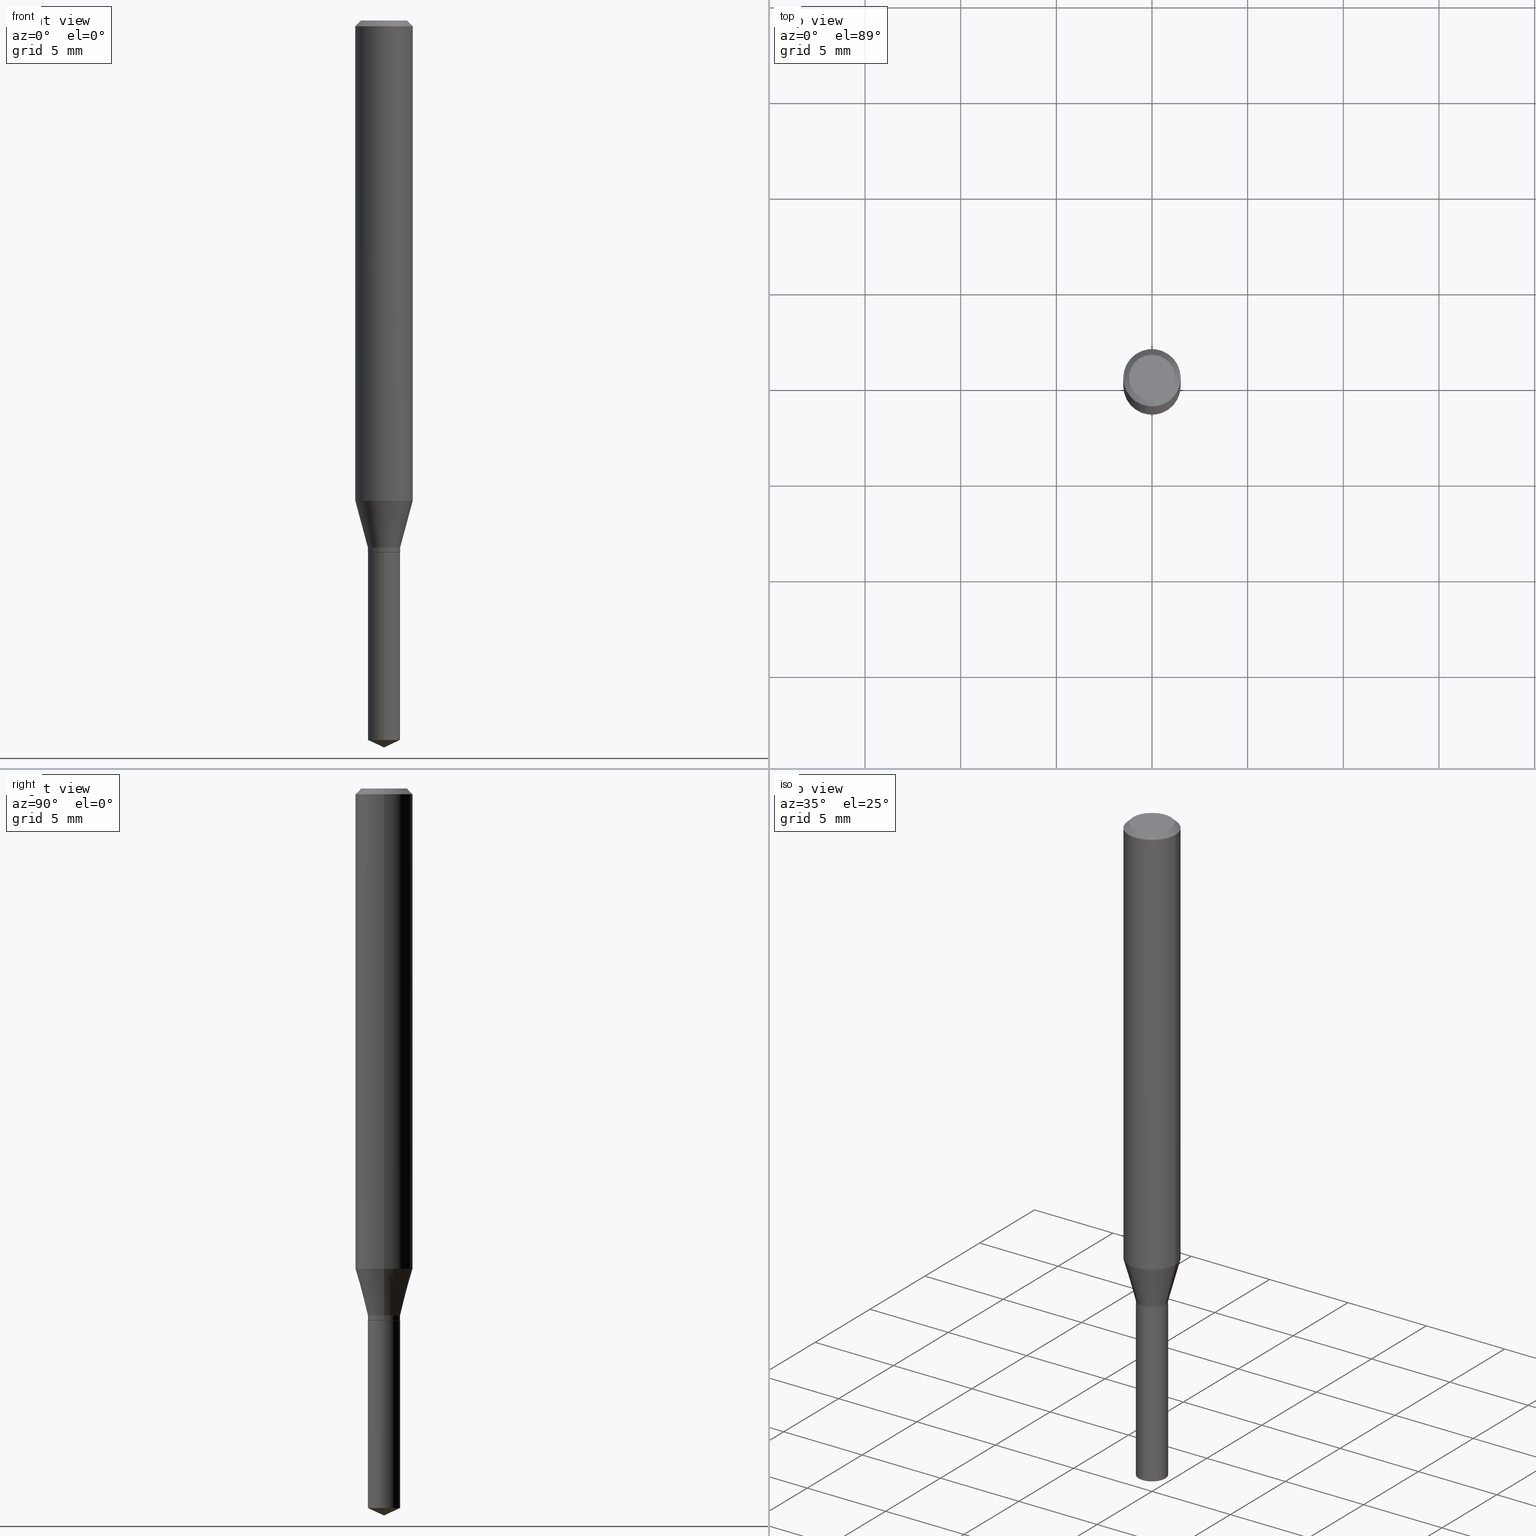
[diagram: canonical four-view strip — front | top / right | iso, engineering-drawing reading convention]
A machine part, canonical four-view strip (front | top / right | iso — engineering-drawing reading convention). The complete STEP part file that produces these views, byte-faithful:
ISO-10303-21;
HEADER;
FILE_DESCRIPTION (( 'STEP AP203' ),
    '1' );
FILE_NAME ('07907.STEP',
    '2024-04-24T05:53:26',
    ( '' ),
    ( '' ),
    'SwSTEP 2.0',
    'SolidWorks 2023',
    '' );
FILE_SCHEMA (( 'CONFIG_CONTROL_DESIGN' ));
ENDSEC;

DATA;
#1 = CARTESIAN_POINT ( 'NONE',  ( 4.132873053354867254E-48, -5.900647395337818946E-34, -1.690012582823346072E-19 ) ) ;
#2 = ORIENTED_EDGE ( 'NONE', *, *, #227, .T. ) ;
#3 = APPROVAL_DATE_TIME ( #37, #256 ) ;
#4 = ADVANCED_FACE ( 'NONE', ( #441 ), #75, .T. ) ;
#5 = FACE_OUTER_BOUND ( 'NONE', #353, .T. ) ;
#6 = ORIENTED_EDGE ( 'NONE', *, *, #56, .T. ) ;
#7 = DIRECTION ( 'NONE',  ( 2.445470214571801836E-29, -3.491479321953280158E-15, -1.000000000000000000 ) ) ;
#8 = ORIENTED_EDGE ( 'NONE', *, *, #476, .F. ) ;
#9 = COORDINATED_UNIVERSAL_TIME_OFFSET ( 5, 0, .BEHIND. ) ;
#10 = CC_DESIGN_PERSON_AND_ORGANIZATION_ASSIGNMENT ( #197, #153, ( #404 ) ) ;
#11 = EDGE_LOOP ( 'NONE', ( #396, #122 ) ) ;
#12 = ORIENTED_EDGE ( 'NONE', *, *, #127, .T. ) ;
#13 = DIRECTION ( 'NONE',  ( 1.000000000000000000, -6.982962677686266711E-15, 0.000000000000000000 ) ) ;
#14 = CIRCLE ( 'NONE', #482, 0.03275000000000000133 ) ;
#15 = APPROVAL_PERSON_ORGANIZATION ( #81, #193, #158 ) ;
#16 = CIRCLE ( 'NONE', #221, 0.03325000000000000178 ) ;
#17 = CARTESIAN_POINT ( 'NONE',  ( 0.03275000000000000133, -4.050118353058048418E-15, -1.094500000000000028 ) ) ;
#18 = EDGE_CURVE ( 'NONE', #308, #78, #86, .T. ) ;
#19 = DIRECTION ( 'NONE',  ( 1.000000000000000000, -6.982962677686267499E-15, 0.000000000000000000 ) ) ;
#20 = MANIFOLD_SOLID_BREP ( 'Body-Move/Copy2[2]', #231 ) ;
#21 = CONICAL_SURFACE ( 'NONE', #168, 0.03325000000000000178, 0.2617993877991498519 ) ;
#22 = CARTESIAN_POINT ( 'NONE',  ( -0.05904999999999999832, 3.711095515056362547E-16, -0.01181000000000007218 ) ) ;
#23 = DIRECTION ( 'NONE',  ( 1.000000000000000000, -6.982962677686266711E-15, 4.876176775795935793E-29 ) ) ;
#24 = PERSON_AND_ORGANIZATION ( #102, #377 ) ;
#25 = PLANE ( 'NONE',  #174 ) ;
#26 =( NAMED_UNIT ( * ) PLANE_ANGLE_UNIT ( ) SI_UNIT ( $, .RADIAN. ) );
#27 = CC_DESIGN_PERSON_AND_ORGANIZATION_ASSIGNMENT ( #24, #179, ( #385 ) ) ;
#28 = CYLINDRICAL_SURFACE ( 'NONE', #109, 0.03325000000000000178 ) ;
#29 = EDGE_CURVE ( 'NONE', #223, #187, #327, .T. ) ;
#30 = CIRCLE ( 'NONE', #414, 0.03325000000000000178 ) ;
#31 = APPROVAL_PERSON_ORGANIZATION ( #135, #364, #460 ) ;
#32 = EDGE_LOOP ( 'NONE', ( #198, #46, #287, #387 ) ) ;
#33 = CARTESIAN_POINT ( 'NONE',  ( 2.676565608369632355E-29, -3.821426325363822773E-15, -1.094500000000000028 ) ) ;
#34 = ORIENTED_EDGE ( 'NONE', *, *, #289, .F. ) ;
#35 = CARTESIAN_POINT ( 'NONE',  ( 2.652110920307780249E-29, -3.786511511975391124E-15, -1.084499999999999797 ) ) ;
#36 = EDGE_LOOP ( 'NONE', ( #435, #362 ) ) ;
#37 = DATE_AND_TIME ( #384, #190 ) ;
#38 = DIRECTION ( 'NONE',  ( 1.000000000000000000, -6.982962677686266711E-15, 0.000000000000000000 ) ) ;
#39 = DIRECTION ( 'NONE',  ( -2.445470214571802396E-29, 3.491479321953280158E-15, 1.000000000000000000 ) ) ;
#40 = CONICAL_SURFACE ( 'NONE', #229, 84.42940631927426409, 1.134464013796315562 ) ;
#41 = PERSON_AND_ORGANIZATION ( #102, #377 ) ;
#42 = CC_DESIGN_APPROVAL ( #193, ( #404 ) ) ;
#43 = EDGE_CURVE ( 'NONE', #106, #72, #129, .T. ) ;
#44 = APPROVAL_STATUS ( 'not_yet_approved' ) ;
#45 = DIRECTION ( 'NONE',  ( 1.000000000000000000, -6.982962677686267499E-15, 0.000000000000000000 ) ) ;
#46 = ORIENTED_EDGE ( 'NONE', *, *, #397, .T. ) ;
#47 = PERSON_AND_ORGANIZATION ( #102, #377 ) ;
#48 = FACE_OUTER_BOUND ( 'NONE', #239, .T. ) ;
#49 = ADVANCED_FACE ( 'NONE', ( #206 ), #207, .T. ) ;
#50 = ORIENTED_EDGE ( 'NONE', *, *, #386, .T. ) ;
#51 = AXIS2_PLACEMENT_3D ( 'NONE', #367, #244, #23 ) ;
#52 = CC_DESIGN_SECURITY_CLASSIFICATION ( #404, ( #251 ) ) ;
#53 = VERTEX_POINT ( 'NONE', #284 ) ;
#54 = VERTEX_POINT ( 'NONE', #58 ) ;
#55 = ORIENTED_EDGE ( 'NONE', *, *, #43, .T. ) ;
#56 = EDGE_CURVE ( 'NONE', #54, #308, #137, .T. ) ;
#57 = VECTOR ( 'NONE', #451, 39.37007874015748143 ) ;
#58 = CARTESIAN_POINT ( 'NONE',  ( -0.03275000000000000133, -3.586074352228278358E-15, -1.094500000000000028 ) ) ;
#59 = DIRECTION ( 'NONE',  ( -2.445468806185136597E-29, 3.491481338843145583E-15, 1.000000000000000000 ) ) ;
#60 = LINE ( 'NONE', #184, #361 ) ;
#61 = VECTOR ( 'NONE', #39, 39.37007874015748143 ) ;
#62 = CARTESIAN_POINT ( 'NONE',  ( 0.000000000000000000, 0.000000000000000000, 0.000000000000000000 ) ) ;
#63 = DIRECTION ( 'NONE',  ( -2.445468806185136597E-29, 3.491481338843145583E-15, 1.000000000000000000 ) ) ;
#64 = CARTESIAN_POINT ( 'NONE',  ( -0.05904999999999999832, -1.326205491649111683E-15, -0.01181000000000007218 ) ) ;
#65 = VECTOR ( 'NONE', #321, 39.37007874015748143 ) ;
#66 = CARTESIAN_POINT ( 'NONE',  ( -2.321835090330415843E-16, -0.03325000000000382511, -1.094499999999999806 ) ) ;
#67 = DIRECTION ( 'NONE',  ( -2.445470214571802116E-29, 3.491479321953280158E-15, 1.000000000000000000 ) ) ;
#68 = DIRECTION ( 'NONE',  ( -2.445468806185136597E-29, 3.491481338843145583E-15, 1.000000000000000000 ) ) ;
#69 = APPLICATION_PROTOCOL_DEFINITION ( 'international standard', 'config_control_design', 1994, #472 ) ;
#70 = CARTESIAN_POINT ( 'NONE',  ( -0.03325000000000000178, -3.566840588694662478E-15, -1.093999999999999861 ) ) ;
#71 = VECTOR ( 'NONE', #114, 39.37007874015748143 ) ;
#72 = VERTEX_POINT ( 'NONE', #246 ) ;
#73 = DIRECTION ( 'NONE',  ( -2.445468806185136597E-29, 3.491481338843145583E-15, 1.000000000000000000 ) ) ;
#74 = ORIENTED_EDGE ( 'NONE', *, *, #476, .T. ) ;
#75 = CONICAL_SURFACE ( 'NONE', #356, 0.03275000000000000133, 0.7853981633972775267 ) ;
#76 = FACE_OUTER_BOUND ( 'NONE', #343, .T. ) ;
#77 = EDGE_CURVE ( 'NONE', #78, #308, #125, .T. ) ;
#78 = VERTEX_POINT ( 'NONE', #440 ) ;
#79 = VECTOR ( 'NONE', #391, 39.37007874015748854 ) ;
#80 = LOCAL_TIME ( 1, 53, 26.00000000000000000, #9 ) ;
#81 = PERSON_AND_ORGANIZATION ( #102, #377 ) ;
#82 = ORIENTED_EDGE ( 'NONE', *, *, #131, .F. ) ;
#83 = DATE_AND_TIME ( #309, #342 ) ;
#84 = CARTESIAN_POINT ( 'NONE',  ( 2.888098660104664204E-31, -4.123439461173780263E-17, -0.01181000000000007218 ) ) ;
#85 = EDGE_CURVE ( 'NONE', #467, #117, #291, .T. ) ;
#86 = CIRCLE ( 'NONE', #134, 0.03325000000000000178 ) ;
#87 = ORIENTED_EDGE ( 'NONE', *, *, #85, .T. ) ;
#88 = EDGE_LOOP ( 'NONE', ( #132, #165, #50, #8 ) ) ;
#89 = CARTESIAN_POINT ( 'NONE',  ( -0.04724000000000000421, 3.504923541997677355E-16, -3.380025165670481712E-19 ) ) ;
#90 = ORIENTED_EDGE ( 'NONE', *, *, #171, .T. ) ;
#91 = ORIENTED_EDGE ( 'NONE', *, *, #266, .F. ) ;
#92 = CARTESIAN_POINT ( 'NONE',  ( 2.416644283416180076E-29, -3.450327559619166201E-15, -0.9882130891647225024 ) ) ;
#93 = CARTESIAN_POINT ( 'NONE',  ( 2.888098660104664204E-31, -4.123439461173780263E-17, -0.01181000000000007218 ) ) ;
#94 = DIRECTION ( 'NONE',  ( -2.445468806185136597E-29, 3.491481338843145583E-15, 1.000000000000000000 ) ) ;
#95 = CARTESIAN_POINT ( 'NONE',  ( -0.03275000000000000133, -3.588723579402390347E-15, -1.094500000000000028 ) ) ;
#96 = ORIENTED_EDGE ( 'NONE', *, *, #400, .F. ) ;
#97 = PLANE ( 'NONE',  #383 ) ;
#98 = PRODUCT_RELATED_PRODUCT_CATEGORY ( 'detail', '', ( #201 ) ) ;
#99 = DIRECTION ( 'NONE',  ( -2.445468806185136597E-29, 3.491481338843145583E-15, 1.000000000000000000 ) ) ;
#100 = COORDINATED_UNIVERSAL_TIME_OFFSET ( 5, 0, .BEHIND. ) ;
#101 = DIRECTION ( 'NONE',  ( -2.445468806185136597E-29, 3.491481338843145583E-15, 1.000000000000000000 ) ) ;
#102 = PERSON ( 'UNSPECIFIED', 'UNSPECIFIED', 'UNSPECIFIED', ('UNSPECIFIED'), ('UNSPECIFIED'), ('UNSPECIFIED') ) ;
#103 = ADVANCED_FACE ( 'NONE', ( #133 ), #170, .T. ) ;
#104 = APPLICATION_PROTOCOL_DEFINITION ( 'international standard', 'config_control_design', 1994, #235 ) ;
#105 = DIRECTION ( 'NONE',  ( -2.445468806185136597E-29, 3.491481338843145583E-15, 1.000000000000000000 ) ) ;
#106 = VERTEX_POINT ( 'NONE', #64 ) ;
#107 = LINE ( 'NONE', #224, #57 ) ;
#108 = DIRECTION ( 'NONE',  ( -2.445468806185136597E-29, 3.491481338843145583E-15, 1.000000000000000000 ) ) ;
#109 = AXIS2_PLACEMENT_3D ( 'NONE', #144, #212, #489 ) ;
#110 =( GEOMETRIC_REPRESENTATION_CONTEXT ( 3 ) GLOBAL_UNCERTAINTY_ASSIGNED_CONTEXT ( ( #288 ) ) GLOBAL_UNIT_ASSIGNED_CONTEXT ( ( #455, #26, #261 ) ) REPRESENTATION_CONTEXT ( 'NONE', 'WORKASPACE' ) );
#111 =( LENGTH_UNIT ( ) NAMED_UNIT ( * ) SI_UNIT ( $, .METRE. ) );
#112 = FACE_OUTER_BOUND ( 'NONE', #466, .T. ) ;
#113 = DIRECTION ( 'NONE',  ( -2.445468806185136597E-29, 3.491481338843145583E-15, 1.000000000000000000 ) ) ;
#114 = DIRECTION ( 'NONE',  ( -2.445468806185136877E-29, 3.491481338843145188E-15, 1.000000000000000000 ) ) ;
#115 = ORIENTED_EDGE ( 'NONE', *, *, #29, .T. ) ;
#116 = DIRECTION ( 'NONE',  ( -2.445470214571802116E-29, 3.491479321953280158E-15, 1.000000000000000000 ) ) ;
#117 = VERTEX_POINT ( 'NONE', #324 ) ;
#118 = CIRCLE ( 'NONE', #399, 0.03325000000000000178 ) ;
#119 = DESIGN_CONTEXT ( 'detailed design', #472, 'design' ) ;
#120 = ORIENTED_EDGE ( 'NONE', *, *, #127, .F. ) ;
#121 = PERSON_AND_ORGANIZATION_ROLE ( 'creator' ) ;
#122 = ORIENTED_EDGE ( 'NONE', *, *, #397, .F. ) ;
#123 = DIRECTION ( 'NONE',  ( -1.000000000000000000, 6.982962677686266711E-15, 0.000000000000000000 ) ) ;
#124 = EDGE_LOOP ( 'NONE', ( #295, #271, #413, #469 ) ) ;
#125 = CIRCLE ( 'NONE', #433, 0.03325000000000000178 ) ;
#126 = CIRCLE ( 'NONE', #301, 0.04724000000000000421 ) ;
#127 = EDGE_CURVE ( 'NONE', #317, #187, #16, .T. ) ;
#128 = EDGE_LOOP ( 'NONE', ( #282, #310, #87, #275 ) ) ;
#129 = CIRCLE ( 'NONE', #454, 0.05904999999999999832 ) ;
#130 = DIRECTION ( 'NONE',  ( 1.000000000000000000, -6.982962677686266711E-15, 0.000000000000000000 ) ) ;
#131 = EDGE_CURVE ( 'NONE', #273, #106, #177, .T. ) ;
#132 = ORIENTED_EDGE ( 'NONE', *, *, #227, .F. ) ;
#133 = FACE_OUTER_BOUND ( 'NONE', #313, .T. ) ;
#134 = AXIS2_PLACEMENT_3D ( 'NONE', #437, #99, #369 ) ;
#135 = PERSON_AND_ORGANIZATION ( #102, #377 ) ;
#136 = CC_DESIGN_PERSON_AND_ORGANIZATION_ASSIGNMENT ( #47, #121, ( #251 ) ) ;
#137 = LINE ( 'NONE', #95, #443 ) ;
#138 = CALENDAR_DATE ( 2024, 24, 4 ) ;
#139 = CIRCLE ( 'NONE', #403, 0.05905000000000011628 ) ;
#140 = CARTESIAN_POINT ( 'NONE',  ( 2.676565608369632355E-29, -3.821426325363822773E-15, -1.094500000000000028 ) ) ;
#141 = DIRECTION ( 'NONE',  ( -2.445470214571802116E-29, 3.491479321953280158E-15, 1.000000000000000000 ) ) ;
#142 = DIRECTION ( 'NONE',  ( 2.438088387897960049E-29, -3.491481338843145188E-15, -1.000000000000000000 ) ) ;
#143 = FACE_OUTER_BOUND ( 'NONE', #465, .T. ) ;
#144 = CARTESIAN_POINT ( 'NONE',  ( 2.676565608369631794E-29, -3.821426325363822773E-15, -1.094499999999999806 ) ) ;
#145 = EDGE_LOOP ( 'NONE', ( #390, #12, #90, #421 ) ) ;
#146 = PERSON_AND_ORGANIZATION_ROLE ( 'design_owner' ) ;
#147 = EDGE_CURVE ( 'NONE', #354, #78, #323, .T. ) ;
#148 = FACE_OUTER_BOUND ( 'NONE', #88, .T. ) ;
#149 = AXIS2_PLACEMENT_3D ( 'NONE', #359, #7, #281 ) ;
#150 = LOCAL_TIME ( 1, 53, 26.00000000000000000, #329 ) ;
#151 = ORIENTED_EDGE ( 'NONE', *, *, #464, .F. ) ;
#152 = DIRECTION ( 'NONE',  ( 1.000000000000000000, -6.982962677686267499E-15, 0.000000000000000000 ) ) ;
#153 = PERSON_AND_ORGANIZATION_ROLE ( 'classification_officer' ) ;
#154 = EDGE_CURVE ( 'NONE', #273, #117, #307, .T. ) ;
#155 = CARTESIAN_POINT ( 'NONE',  ( -9.261968845786000133E-28, 1.322362114038720264E-13, 37.87397874015748300 ) ) ;
#156 = EDGE_CURVE ( 'NONE', #223, #317, #420, .T. ) ;
#157 = ORIENTED_EDGE ( 'NONE', *, *, #154, .T. ) ;
#158 = APPROVAL_ROLE ( '' ) ;
#159 = LINE ( 'NONE', #389, #71 ) ;
#160 = ORIENTED_EDGE ( 'NONE', *, *, #147, .F. ) ;
#161 = CONICAL_SURFACE ( 'NONE', #279, 0.05904999999999999832, 0.7853981633974452814 ) ;
#162 = COORDINATED_UNIVERSAL_TIME_OFFSET ( 5, 0, .BEHIND. ) ;
#163 = LINE ( 'NONE', #237, #79 ) ;
#164 = ORIENTED_EDGE ( 'NONE', *, *, #18, .T. ) ;
#165 = ORIENTED_EDGE ( 'NONE', *, *, #464, .T. ) ;
#166 = ADVANCED_FACE ( 'NONE', ( #143 ), #462, .T. ) ;
#167 = ORIENTED_EDGE ( 'NONE', *, *, #409, .F. ) ;
#168 = AXIS2_PLACEMENT_3D ( 'NONE', #35, #105, #330 ) ;
#169 = CIRCLE ( 'NONE', #270, 0.03325000000000000178 ) ;
#170 = CYLINDRICAL_SURFACE ( 'NONE', #286, 0.03325000000000000178 ) ;
#171 = EDGE_CURVE ( 'NONE', #187, #475, #226, .T. ) ;
#172 = DIRECTION ( 'NONE',  ( 0.2588190451025211281, 1.565188264969622954E-15, 0.9659258262890679791 ) ) ;
#173 = VECTOR ( 'NONE', #172, 39.37007874015748854 ) ;
#174 = AXIS2_PLACEMENT_3D ( 'NONE', #1, #142, #450 ) ;
#175 = CARTESIAN_POINT ( 'NONE',  ( 2.676565608369632355E-29, -3.821426325363822773E-15, -1.094500000000000028 ) ) ;
#176 = ADVANCED_FACE ( 'NONE', ( #189 ), #306, .F. ) ;
#177 = LINE ( 'NONE', #445, #408 ) ;
#178 = CARTESIAN_POINT ( 'NONE',  ( 2.676565608369631794E-29, -3.821426325363822773E-15, -1.094499999999999806 ) ) ;
#179 = PERSON_AND_ORGANIZATION_ROLE ( 'creator' ) ;
#180 = VECTOR ( 'NONE', #334, 39.37007874015748143 ) ;
#181 = DIRECTION ( 'NONE',  ( -6.982962677686265922E-15, -1.000000000000000000, 4.108042095735734288E-15 ) ) ;
#182 = CARTESIAN_POINT ( 'NONE',  ( 3.658668015054778287E-29, -5.223602213574301462E-15, -1.496099999999999985 ) ) ;
#183 = VERTEX_POINT ( 'NONE', #427 ) ;
#184 = CARTESIAN_POINT ( 'NONE',  ( 0.05905000000000006077, -4.123439461173744764E-16, 2.879382386107503023E-30 ) ) ;
#185 = DIRECTION ( 'NONE',  ( -2.445468806185136597E-29, 3.491481338843145583E-15, 1.000000000000000000 ) ) ;
#186 = CYLINDRICAL_SURFACE ( 'NONE', #208, 0.03325000000000000178 ) ;
#187 = VERTEX_POINT ( 'NONE', #234 ) ;
#188 = CARTESIAN_POINT ( 'NONE',  ( 3.658667988020872822E-29, -5.223602213574301462E-15, -1.496099999999999985 ) ) ;
#189 = FACE_OUTER_BOUND ( 'NONE', #36, .T. ) ;
#190 = LOCAL_TIME ( 1, 53, 26.00000000000000000, #192 ) ;
#191 = ORIENTED_EDGE ( 'NONE', *, *, #43, .F. ) ;
#192 = COORDINATED_UNIVERSAL_TIME_OFFSET ( 5, 0, .BEHIND. ) ;
#193 = APPROVAL ( #44, 'UNSPECIFIED' ) ;
#194 = CARTESIAN_POINT ( 'NONE',  ( 3.620750092037578923E-29, -5.169469978151881884E-15, -1.480595270366346305 ) ) ;
#195 = ADVANCED_FACE ( 'NONE', ( #48 ), #340, .T. ) ;
#196 = ORIENTED_EDGE ( 'NONE', *, *, #29, .F. ) ;
#197 = PERSON_AND_ORGANIZATION ( #102, #377 ) ;
#198 = ORIENTED_EDGE ( 'NONE', *, *, #56, .F. ) ;
#199 = ADVANCED_FACE ( 'NONE', ( #5 ), #40, .T. ) ;
#200 = VECTOR ( 'NONE', #363, 39.37007874015748143 ) ;
#201 = PRODUCT ( '07907', '07907', '', ( #480 ) ) ;
#202 = ORIENTED_EDGE ( 'NONE', *, *, #360, .T. ) ;
#203 = CIRCLE ( 'NONE', #447, 0.05904999999999999832 ) ;
#204 = EDGE_CURVE ( 'NONE', #117, #273, #139, .T. ) ;
#205 = CARTESIAN_POINT ( 'NONE',  ( 2.675342873966538993E-29, -3.819680584694400481E-15, -1.093999999999999861 ) ) ;
#206 = FACE_OUTER_BOUND ( 'NONE', #458, .T. ) ;
#207 = CYLINDRICAL_SURFACE ( 'NONE', #51, 0.05905000000000006077 ) ;
#208 = AXIS2_PLACEMENT_3D ( 'NONE', #178, #67, #181 ) ;
#209 = DIRECTION ( 'NONE',  ( -6.982962677686265922E-15, -1.000000000000000000, 0.000000000000000000 ) ) ;
#210 = ADVANCED_FACE ( 'NONE', ( #293 ), #245, .T. ) ;
#211 = DIRECTION ( 'NONE',  ( -6.982962677686265922E-15, -1.000000000000000000, 4.108042095735734288E-15 ) ) ;
#212 = DIRECTION ( 'NONE',  ( -2.445470214571802116E-29, 3.491479321953280158E-15, 1.000000000000000000 ) ) ;
#213 = DIRECTION ( 'NONE',  ( -2.445468806185136877E-29, 3.491481338843145188E-15, 1.000000000000000000 ) ) ;
#214 = DIRECTION ( 'NONE',  ( -2.445468806185136597E-29, 3.491481338843145583E-15, 1.000000000000000000 ) ) ;
#215 = ORIENTED_EDGE ( 'NONE', *, *, #156, .T. ) ;
#216 = DIRECTION ( 'NONE',  ( -2.445468806185136597E-29, 3.491481338843145583E-15, 1.000000000000000000 ) ) ;
#217 = DIRECTION ( 'NONE',  ( 1.000000000000000000, -6.982962677686265133E-15, 0.000000000000000000 ) ) ;
#218 = ADVANCED_FACE ( 'NONE', ( #380 ), #373, .T. ) ;
#219 = ORIENTED_EDGE ( 'NONE', *, *, #386, .F. ) ;
#220 = DIRECTION ( 'NONE',  ( 0.000000000000000000, 0.000000000000000000, 1.000000000000000000 ) ) ;
#221 = AXIS2_PLACEMENT_3D ( 'NONE', #402, #401, #209 ) ;
#222 = CARTESIAN_POINT ( 'NONE',  ( -0.03325000000000000178, 2.362554596402333244E-16, -1.635545917509756392E-30 ) ) ;
#223 = VERTEX_POINT ( 'NONE', #188 ) ;
#224 = CARTESIAN_POINT ( 'NONE',  ( 0.05904999999999999832, -4.463468013801466955E-16, -0.01181000000000007218 ) ) ;
#225 = CARTESIAN_POINT ( 'NONE',  ( 2.652110920307780249E-29, -3.786511511975391124E-15, -1.084499999999999797 ) ) ;
#226 = LINE ( 'NONE', #381, #61 ) ;
#227 = EDGE_CURVE ( 'NONE', #425, #429, #126, .T. ) ;
#228 = ORIENTED_EDGE ( 'NONE', *, *, #289, .T. ) ;
#229 = AXIS2_PLACEMENT_3D ( 'NONE', #155, #116, #319 ) ;
#230 = ORIENTED_EDGE ( 'NONE', *, *, #485, .F. ) ;
#231 = CLOSED_SHELL ( 'NONE', ( #294, #248, #49, #320, #166, #103, #210, #218, #372, #258, #326, #4 ) ) ;
#232 = APPROVAL_DATE_TIME ( #83, #193 ) ;
#233 = DIRECTION ( 'NONE',  ( 2.445468806185136597E-29, -3.491481338843145583E-15, -1.000000000000000000 ) ) ;
#234 = CARTESIAN_POINT ( 'NONE',  ( -2.321835090330320687E-16, -0.03325000000000517125, -1.480595270366346305 ) ) ;
#235 = APPLICATION_CONTEXT ( 'configuration controlled 3d designs of mechanical parts and assemblies' ) ;
#236 = ORIENTED_EDGE ( 'NONE', *, *, #131, .T. ) ;
#237 = CARTESIAN_POINT ( 'NONE',  ( -0.03325000000000000178, -3.550256052335157800E-15, -1.084499999999999797 ) ) ;
#238 = ADVANCED_FACE ( 'NONE', ( #341 ), #28, .T. ) ;
#239 = EDGE_LOOP ( 'NONE', ( #349, #115, #120 ) ) ;
#240 = AXIS2_PLACEMENT_3D ( 'NONE', #416, #411, #370 ) ;
#241 = LOCAL_TIME ( 1, 53, 26.00000000000000000, #100 ) ;
#242 = ORIENTED_EDGE ( 'NONE', *, *, #77, .F. ) ;
#243 = ORIENTED_EDGE ( 'NONE', *, *, #204, .F. ) ;
#244 = DIRECTION ( 'NONE',  ( -2.445468806185136597E-29, 3.491481338843145583E-15, 1.000000000000000000 ) ) ;
#245 = CONICAL_SURFACE ( 'NONE', #262, 0.03325000000000000178, 0.2617993877991498519 ) ;
#246 = CARTESIAN_POINT ( 'NONE',  ( 0.05904999999999999832, -4.535783407291118600E-16, -0.01181000000000007218 ) ) ;
#247 = CARTESIAN_POINT ( 'NONE',  ( 3.658664905062460986E-29, -5.223606628546217219E-15, -1.496099999999999985 ) ) ;
#248 = ADVANCED_FACE ( 'NONE', ( #148 ), #292, .T. ) ;
#249 = APPROVAL_STATUS ( 'not_yet_approved' ) ;
#250 = AXIS2_PLACEMENT_3D ( 'NONE', #298, #113, #267 ) ;
#251 = PRODUCT_DEFINITION_FORMATION_WITH_SPECIFIED_SOURCE ( 'ANY', '', #201, .NOT_KNOWN. ) ;
#252 = DIRECTION ( 'NONE',  ( -2.445468806185136597E-29, 3.491481338843145583E-15, 1.000000000000000000 ) ) ;
#253 = CARTESIAN_POINT ( 'NONE',  ( 0.03325000000000000178, -4.018695021008458987E-15, -1.084499999999999797 ) ) ;
#254 = DATE_AND_TIME ( #138, #150 ) ;
#255 = FACE_OUTER_BOUND ( 'NONE', #124, .T. ) ;
#256 = APPROVAL ( #423, 'UNSPECIFIED' ) ;
#257 = CARTESIAN_POINT ( 'NONE',  ( 8.265746106709734507E-48, -1.180129479067563789E-33, -3.380025165646692144E-19 ) ) ;
#258 = ADVANCED_FACE ( 'NONE', ( #76 ), #25, .F. ) ;
#259 = DIRECTION ( 'NONE',  ( 1.000000000000000000, -6.982962677686265922E-15, 4.876176775795935793E-29 ) ) ;
#260 = ORIENTED_EDGE ( 'NONE', *, *, #85, .F. ) ;
#261 =( NAMED_UNIT ( * ) SI_UNIT ( $, .STERADIAN. ) SOLID_ANGLE_UNIT ( ) );
#262 = AXIS2_PLACEMENT_3D ( 'NONE', #225, #108, #484 ) ;
#263 = CARTESIAN_POINT ( 'NONE',  ( 2.652110920307780249E-29, -3.786511511975391124E-15, -1.084499999999999797 ) ) ;
#264 = CARTESIAN_POINT ( 'NONE',  ( 2.676565608369631794E-29, -3.821426325363822773E-15, -1.094499999999999806 ) ) ;
#265 = CARTESIAN_POINT ( 'NONE',  ( 8.265746106709734507E-48, -1.180129479067563789E-33, -3.380025165646692144E-19 ) ) ;
#266 = EDGE_CURVE ( 'NONE', #183, #467, #169, .T. ) ;
#267 = DIRECTION ( 'NONE',  ( 1.000000000000000000, -6.982962677686267499E-15, 4.876176775795936353E-29 ) ) ;
#268 = PRODUCT_DEFINITION_SHAPE ( 'NONE', 'NONE',  #385 ) ;
#269 = CALENDAR_DATE ( 2024, 24, 4 ) ;
#270 = AXIS2_PLACEMENT_3D ( 'NONE', #263, #73, #152 ) ;
#271 = ORIENTED_EDGE ( 'NONE', *, *, #314, .T. ) ;
#272 = DIRECTION ( 'NONE',  ( -6.982962677686265922E-15, -1.000000000000000000, 0.000000000000000000 ) ) ;
#273 = VERTEX_POINT ( 'NONE', #461 ) ;
#274 = CC_DESIGN_DATE_AND_TIME_ASSIGNMENT ( #347, #276, ( #404 ) ) ;
#275 = ORIENTED_EDGE ( 'NONE', *, *, #154, .F. ) ;
#276 = DATE_TIME_ROLE ( 'classification_date' ) ;
#277 = DIRECTION ( 'NONE',  ( -2.445468806185136597E-29, 3.491481338843145583E-15, 1.000000000000000000 ) ) ;
#278 = ORIENTED_EDGE ( 'NONE', *, *, #366, .T. ) ;
#279 = AXIS2_PLACEMENT_3D ( 'NONE', #468, #233, #123 ) ;
#280 = CC_DESIGN_APPROVAL ( #364, ( #385 ) ) ;
#281 = DIRECTION ( 'NONE',  ( 6.982962677686265922E-15, 1.000000000000000000, -3.491479321953280158E-15 ) ) ;
#282 = ORIENTED_EDGE ( 'NONE', *, *, #434, .F. ) ;
#283 = ORIENTED_EDGE ( 'NONE', *, *, #434, .T. ) ;
#284 = CARTESIAN_POINT ( 'NONE',  ( 2.362554596402695134E-16, 0.03324999999999617845, -1.094500000000000028 ) ) ;
#285 = AXIS2_PLACEMENT_3D ( 'NONE', #376, #220, #296 ) ;
#286 = AXIS2_PLACEMENT_3D ( 'NONE', #62, #407, #442 ) ;
#287 = ORIENTED_EDGE ( 'NONE', *, *, #147, .T. ) ;
#288 = UNCERTAINTY_MEASURE_WITH_UNIT (LENGTH_MEASURE( 1.000000000000000082E-05 ), #455, 'distance_accuracy_value', 'NONE');
#289 = EDGE_CURVE ( 'NONE', #308, #183, #412, .T. ) ;
#290 = CARTESIAN_POINT ( 'NONE',  ( 0.03325000000000000178, -4.018695021008458987E-15, -1.084499999999999797 ) ) ;
#291 = LINE ( 'NONE', #253, #173 ) ;
#292 = CONICAL_SURFACE ( 'NONE', #240, 0.05904999999999999832, 0.7853981633974452814 ) ;
#293 = FACE_OUTER_BOUND ( 'NONE', #128, .T. ) ;
#294 = ADVANCED_FACE ( 'NONE', ( #444 ), #424, .T. ) ;
#295 = ORIENTED_EDGE ( 'NONE', *, *, #409, .T. ) ;
#296 = DIRECTION ( 'NONE',  ( 1.000000000000000000, 0.000000000000000000, 0.000000000000000000 ) ) ;
#297 = DIRECTION ( 'NONE',  ( -2.445468806185136877E-29, 3.491481338843145188E-15, 1.000000000000000000 ) ) ;
#298 = CARTESIAN_POINT ( 'NONE',  ( 0.000000000000000000, 0.000000000000000000, 0.000000000000000000 ) ) ;
#299 = LENGTH_MEASURE_WITH_UNIT ( LENGTH_MEASURE( 0.02539999999999999897 ), #111 );
#300 = CARTESIAN_POINT ( 'NONE',  ( 2.652110920307780249E-29, -3.786511511975391124E-15, -1.084499999999999797 ) ) ;
#301 = AXIS2_PLACEMENT_3D ( 'NONE', #265, #252, #419 ) ;
#302 = FACE_OUTER_BOUND ( 'NONE', #11, .T. ) ;
#303 = ADVANCED_BREP_SHAPE_REPRESENTATION ( '07907', ( #357, #20, #285 ), #110 ) ;
#304 = CARTESIAN_POINT ( 'NONE',  ( 2.676565608369632355E-29, -3.821426325363822773E-15, -1.094500000000000028 ) ) ;
#305 = ADVANCED_FACE ( 'NONE', ( #255 ), #186, .T. ) ;
#306 = PLANE ( 'NONE',  #149 ) ;
#307 = CIRCLE ( 'NONE', #345, 0.05905000000000011628 ) ;
#308 = VERTEX_POINT ( 'NONE', #70 ) ;
#309 = CALENDAR_DATE ( 2024, 24, 4 ) ;
#310 = ORIENTED_EDGE ( 'NONE', *, *, #266, .T. ) ;
#311 = CIRCLE ( 'NONE', #392, 0.04724000000000000421 ) ;
#312 = CC_DESIGN_APPROVAL ( #256, ( #251 ) ) ;
#313 = EDGE_LOOP ( 'NONE', ( #34, #164, #395, #91 ) ) ;
#314 = EDGE_CURVE ( 'NONE', #317, #53, #332, .T. ) ;
#315 = EDGE_LOOP ( 'NONE', ( #151, #230, #74, #55 ) ) ;
#316 = FACE_OUTER_BOUND ( 'NONE', #315, .T. ) ;
#317 = VERTEX_POINT ( 'NONE', #379 ) ;
#318 = VECTOR ( 'NONE', #457, 39.37007874015748143 ) ;
#319 = DIRECTION ( 'NONE',  ( -6.982962677686266711E-15, -1.000000000000000000, 3.520397390770457025E-15 ) ) ;
#320 = ADVANCED_FACE ( 'NONE', ( #112 ), #21, .T. ) ;
#321 = DIRECTION ( 'NONE',  ( 0.7071067811864267805, -2.468850131080992517E-15, 0.7071067811866682540 ) ) ;
#322 = VECTOR ( 'NONE', #422, 39.37007874015748854 ) ;
#323 = LINE ( 'NONE', #17, #65 ) ;
#324 = CARTESIAN_POINT ( 'NONE',  ( 0.05905000000000011628, -3.862671505736541121E-15, -0.9882130891647225024 ) ) ;
#325 = AXIS2_PLACEMENT_3D ( 'NONE', #488, #63, #337 ) ;
#326 = ADVANCED_FACE ( 'NONE', ( #302 ), #97, .F. ) ;
#327 = LINE ( 'NONE', #247, #200 ) ;
#328 = DATE_AND_TIME ( #418, #241 ) ;
#329 = COORDINATED_UNIVERSAL_TIME_OFFSET ( 5, 0, .BEHIND. ) ;
#330 = DIRECTION ( 'NONE',  ( 1.000000000000000000, -6.982962677686267499E-15, 0.000000000000000000 ) ) ;
#331 = DIRECTION ( 'NONE',  ( -2.445468806185136877E-29, 3.491481338843145188E-15, 1.000000000000000000 ) ) ;
#332 = LINE ( 'NONE', #453, #318 ) ;
#333 = ORIENTED_EDGE ( 'NONE', *, *, #366, .F. ) ;
#334 = DIRECTION ( 'NONE',  ( -0.7071067811865453523, 2.468850131082234184E-15, -0.7071067811865496822 ) ) ;
#335 = DIRECTION ( 'NONE',  ( 1.000000000000000000, -6.982962677686265133E-15, 0.000000000000000000 ) ) ;
#336 = DIRECTION ( 'NONE',  ( -6.982962677686265922E-15, -1.000000000000000000, 4.108042095735734288E-15 ) ) ;
#337 = DIRECTION ( 'NONE',  ( 1.000000000000000000, -6.982962677686266711E-15, 4.876176775795935793E-29 ) ) ;
#338 = ORIENTED_EDGE ( 'NONE', *, *, #446, .F. ) ;
#339 = SECURITY_CLASSIFICATION_LEVEL ( 'unclassified' ) ;
#340 = CONICAL_SURFACE ( 'NONE', #459, 84.42940631927426409, 1.134464013796315562 ) ;
#341 = FACE_OUTER_BOUND ( 'NONE', #145, .T. ) ;
#342 = LOCAL_TIME ( 1, 53, 26.00000000000000000, #162 ) ;
#343 = EDGE_LOOP ( 'NONE', ( #486, #2 ) ) ;
#344 = DIRECTION ( 'NONE',  ( -2.445470214571802116E-29, 3.491479321953280158E-15, 1.000000000000000000 ) ) ;
#345 = AXIS2_PLACEMENT_3D ( 'NONE', #473, #68, #374 ) ;
#346 = DIRECTION ( 'NONE',  ( -6.982962677686266711E-15, -1.000000000000000000, 3.520397390770457025E-15 ) ) ;
#347 = DATE_AND_TIME ( #269, #80 ) ;
#348 = DIRECTION ( 'NONE',  ( -2.445468806185136597E-29, 3.491481338843145583E-15, 1.000000000000000000 ) ) ;
#349 = ORIENTED_EDGE ( 'NONE', *, *, #156, .F. ) ;
#350 = CARTESIAN_POINT ( 'NONE',  ( 0.04724000000000000421, -3.852183633974369345E-16, -3.380025165621689721E-19 ) ) ;
#351 = CIRCLE ( 'NONE', #439, 0.03325000000000000178 ) ;
#352 = DIRECTION ( 'NONE',  ( -2.445470214571802116E-29, 3.491479321953280158E-15, 1.000000000000000000 ) ) ;
#353 = EDGE_LOOP ( 'NONE', ( #196, #215, #167 ) ) ;
#354 = VERTEX_POINT ( 'NONE', #378 ) ;
#355 = CC_DESIGN_DATE_AND_TIME_ASSIGNMENT ( #254, #410, ( #385 ) ) ;
#356 = AXIS2_PLACEMENT_3D ( 'NONE', #175, #59, #365 ) ;
#357 = MANIFOLD_SOLID_BREP ( 'Body-Move/Copy2[1]', #452 ) ;
#358 = DIRECTION ( 'NONE',  ( -2.445468806185136597E-29, 3.491481338843145583E-15, 1.000000000000000000 ) ) ;
#359 = CARTESIAN_POINT ( 'NONE',  ( 2.676565608369631794E-29, -3.821426325363822773E-15, -1.094499999999999806 ) ) ;
#360 = EDGE_CURVE ( 'NONE', #354, #54, #432, .T. ) ;
#361 = VECTOR ( 'NONE', #331, 39.37007874015748143 ) ;
#362 = ORIENTED_EDGE ( 'NONE', *, *, #456, .T. ) ;
#363 = DIRECTION ( 'NONE',  ( -6.328713451373374112E-15, -0.9063077870366490485, 0.4226182617407013287 ) ) ;
#364 = APPROVAL ( #249, 'UNSPECIFIED' ) ;
#365 = DIRECTION ( 'NONE',  ( 1.000000000000000000, -6.982962677686265133E-15, 0.000000000000000000 ) ) ;
#366 = EDGE_CURVE ( 'NONE', #467, #183, #490, .T. ) ;
#367 = CARTESIAN_POINT ( 'NONE',  ( 0.000000000000000000, 0.000000000000000000, 0.000000000000000000 ) ) ;
#368 = AXIS2_PLACEMENT_3D ( 'NONE', #33, #185, #335 ) ;
#369 = DIRECTION ( 'NONE',  ( 1.000000000000000000, -6.982962677686267499E-15, 0.000000000000000000 ) ) ;
#370 = DIRECTION ( 'NONE',  ( -1.000000000000000000, 6.982962677686266711E-15, 0.000000000000000000 ) ) ;
#371 = DIRECTION ( 'NONE',  ( -2.445470214571802116E-29, 3.491479321953280158E-15, 1.000000000000000000 ) ) ;
#372 = ADVANCED_FACE ( 'NONE', ( #316 ), #161, .T. ) ;
#373 = CYLINDRICAL_SURFACE ( 'NONE', #325, 0.05905000000000006077 ) ;
#374 = DIRECTION ( 'NONE',  ( 1.000000000000000000, -6.982962677686266711E-15, 0.000000000000000000 ) ) ;
#375 = AXIS2_PLACEMENT_3D ( 'NONE', #300, #358, #45 ) ;
#376 = CARTESIAN_POINT ( 'NONE',  ( 0.000000000000000000, 0.000000000000000000, 0.000000000000000000 ) ) ;
#377 = ORGANIZATION ( 'UNSPECIFIED', 'UNSPECIFIED', '' ) ;
#378 = CARTESIAN_POINT ( 'NONE',  ( 0.03275000000000000133, -4.050118353058048418E-15, -1.094500000000000028 ) ) ;
#379 = CARTESIAN_POINT ( 'NONE',  ( 2.362554596402695134E-16, 0.03324999999999482536, -1.480595270366346305 ) ) ;
#380 = FACE_OUTER_BOUND ( 'NONE', #428, .T. ) ;
#381 = CARTESIAN_POINT ( 'NONE',  ( -2.321835090330415843E-16, -0.03325000000000382511, -1.094499999999999806 ) ) ;
#382 = APPROVAL_ROLE ( '' ) ;
#383 = AXIS2_PLACEMENT_3D ( 'NONE', #406, #481, #259 ) ;
#384 = CALENDAR_DATE ( 2024, 24, 4 ) ;
#385 = PRODUCT_DEFINITION ( 'UNKNOWN', '', #251, #119 ) ;
#386 = EDGE_CURVE ( 'NONE', #72, #106, #203, .T. ) ;
#387 = ORIENTED_EDGE ( 'NONE', *, *, #18, .F. ) ;
#388 = PERSON_AND_ORGANIZATION ( #102, #377 ) ;
#389 = CARTESIAN_POINT ( 'NONE',  ( 0.03325000000000000178, -2.321835090330684056E-16, 1.621328777952148847E-30 ) ) ;
#390 = ORIENTED_EDGE ( 'NONE', *, *, #314, .F. ) ;
#391 = DIRECTION ( 'NONE',  ( -0.2588190451025211281, 5.211531920934547886E-15, 0.9659258262890679791 ) ) ;
#392 = AXIS2_PLACEMENT_3D ( 'NONE', #257, #216, #487 ) ;
#393 = CC_DESIGN_PERSON_AND_ORGANIZATION_ASSIGNMENT ( #388, #426, ( #251 ) ) ;
#394 = APPROVAL_PERSON_ORGANIZATION ( #41, #256, #382 ) ;
#395 = ORIENTED_EDGE ( 'NONE', *, *, #400, .T. ) ;
#396 = ORIENTED_EDGE ( 'NONE', *, *, #360, .F. ) ;
#397 = EDGE_CURVE ( 'NONE', #54, #354, #14, .T. ) ;
#398 = ORIENTED_EDGE ( 'NONE', *, *, #77, .T. ) ;
#399 = AXIS2_PLACEMENT_3D ( 'NONE', #264, #371, #211 ) ;
#400 = EDGE_CURVE ( 'NONE', #78, #467, #159, .T. ) ;
#401 = DIRECTION ( 'NONE',  ( -2.445470214571802116E-29, 3.491479321953280158E-15, 1.000000000000000000 ) ) ;
#402 = CARTESIAN_POINT ( 'NONE',  ( 3.620750092037578923E-29, -5.169469978151881884E-15, -1.480595270366346305 ) ) ;
#403 = AXIS2_PLACEMENT_3D ( 'NONE', #92, #214, #38 ) ;
#404 = SECURITY_CLASSIFICATION ( '', '', #339 ) ;
#405 = LINE ( 'NONE', #22, #180 ) ;
#406 = CARTESIAN_POINT ( 'NONE',  ( -5.110850297619460247E-30, -8.386323468975328386E-15, -1.094500000000000028 ) ) ;
#407 = DIRECTION ( 'NONE',  ( -2.445468806185136597E-29, 3.491481338843145583E-15, 1.000000000000000000 ) ) ;
#408 = VECTOR ( 'NONE', #213, 39.37007874015748143 ) ;
#409 = EDGE_CURVE ( 'NONE', #187, #317, #30, .T. ) ;
#410 = DATE_TIME_ROLE ( 'creation_date' ) ;
#411 = DIRECTION ( 'NONE',  ( 2.445468806185136597E-29, -3.491481338843145583E-15, -1.000000000000000000 ) ) ;
#412 = LINE ( 'NONE', #222, #448 ) ;
#413 = ORIENTED_EDGE ( 'NONE', *, *, #471, .F. ) ;
#414 = AXIS2_PLACEMENT_3D ( 'NONE', #194, #344, #272 ) ;
#415 = CC_DESIGN_PERSON_AND_ORGANIZATION_ASSIGNMENT ( #449, #146, ( #201 ) ) ;
#416 = CARTESIAN_POINT ( 'NONE',  ( 2.888098660104664204E-31, -4.123439461173780263E-17, -0.01181000000000007218 ) ) ;
#417 = ORIENTED_EDGE ( 'NONE', *, *, #204, .T. ) ;
#418 = CALENDAR_DATE ( 2024, 24, 4 ) ;
#419 = DIRECTION ( 'NONE',  ( 1.000000000000000000, -6.982962677686266711E-15, 4.876185090822587894E-29 ) ) ;
#420 = LINE ( 'NONE', #182, #322 ) ;
#421 = ORIENTED_EDGE ( 'NONE', *, *, #456, .F. ) ;
#422 = DIRECTION ( 'NONE',  ( 6.439704144417028775E-15, 0.9063077870366519351, 0.4226182617406950559 ) ) ;
#423 = APPROVAL_STATUS ( 'not_yet_approved' ) ;
#424 = CONICAL_SURFACE ( 'NONE', #474, 0.03275000000000000133, 0.7853981633972775267 ) ;
#425 = VERTEX_POINT ( 'NONE', #350 ) ;
#426 = PERSON_AND_ORGANIZATION_ROLE ( 'design_supplier' ) ;
#427 = CARTESIAN_POINT ( 'NONE',  ( -0.03325000000000000178, -3.566840588694662478E-15, -1.084499999999999797 ) ) ;
#428 = EDGE_LOOP ( 'NONE', ( #82, #157, #463, #191 ) ) ;
#429 = VERTEX_POINT ( 'NONE', #89 ) ;
#430 = SHAPE_DEFINITION_REPRESENTATION ( #268, #303 ) ;
#431 = DIRECTION ( 'NONE',  ( 1.000000000000000000, -6.982962677686265133E-15, 0.000000000000000000 ) ) ;
#432 = CIRCLE ( 'NONE', #368, 0.03275000000000000133 ) ;
#433 = AXIS2_PLACEMENT_3D ( 'NONE', #205, #94, #19 ) ;
#434 = EDGE_CURVE ( 'NONE', #183, #273, #163, .T. ) ;
#435 = ORIENTED_EDGE ( 'NONE', *, *, #471, .T. ) ;
#436 = EDGE_LOOP ( 'NONE', ( #202, #6, #242, #160 ) ) ;
#437 = CARTESIAN_POINT ( 'NONE',  ( 2.675342873966538993E-29, -3.819680584694400481E-15, -1.093999999999999861 ) ) ;
#438 = DIMENSIONAL_EXPONENTS ( 1.000000000000000000, 0.000000000000000000, 0.000000000000000000, 0.000000000000000000, 0.000000000000000000, 0.000000000000000000, 0.000000000000000000 ) ;
#439 = AXIS2_PLACEMENT_3D ( 'NONE', #483, #141, #336 ) ;
#440 = CARTESIAN_POINT ( 'NONE',  ( 0.03325000000000000178, -4.051864093727469133E-15, -1.093999999999999861 ) ) ;
#441 = FACE_OUTER_BOUND ( 'NONE', #32, .T. ) ;
#442 = DIRECTION ( 'NONE',  ( 1.000000000000000000, -6.982962677686267499E-15, 4.876176775795936353E-29 ) ) ;
#443 = VECTOR ( 'NONE', #477, 39.37007874015748143 ) ;
#444 = FACE_OUTER_BOUND ( 'NONE', #436, .T. ) ;
#445 = CARTESIAN_POINT ( 'NONE',  ( -0.05905000000000006077, 4.195754854663395916E-16, -2.904631170795524694E-30 ) ) ;
#446 = EDGE_CURVE ( 'NONE', #117, #72, #60, .T. ) ;
#447 = AXIS2_PLACEMENT_3D ( 'NONE', #84, #348, #13 ) ;
#448 = VECTOR ( 'NONE', #297, 39.37007874015748143 ) ;
#449 = PERSON_AND_ORGANIZATION ( #102, #377 ) ;
#450 = DIRECTION ( 'NONE',  ( -1.000000000000000000, 6.982962677686265922E-15, -4.876176775795935793E-29 ) ) ;
#451 = DIRECTION ( 'NONE',  ( 0.7071067811865453523, -7.319954787623248157E-15, -0.7071067811865496822 ) ) ;
#452 = CLOSED_SHELL ( 'NONE', ( #305, #199, #195, #238, #176 ) ) ;
#453 = CARTESIAN_POINT ( 'NONE',  ( 2.362554596402600471E-16, 0.03324999999999617845, -1.094500000000000028 ) ) ;
#454 = AXIS2_PLACEMENT_3D ( 'NONE', #93, #479, #130 ) ;
#455 =( CONVERSION_BASED_UNIT ( 'INCH', #299 ) LENGTH_UNIT ( ) NAMED_UNIT ( #438 ) );
#456 = EDGE_CURVE ( 'NONE', #53, #475, #351, .T. ) ;
#457 = DIRECTION ( 'NONE',  ( -2.445470214571802396E-29, 3.491479321953280158E-15, 1.000000000000000000 ) ) ;
#458 = EDGE_LOOP ( 'NONE', ( #417, #236, #219, #338 ) ) ;
#459 = AXIS2_PLACEMENT_3D ( 'NONE', #470, #352, #346 ) ;
#460 = APPROVAL_ROLE ( '' ) ;
#461 = CARTESIAN_POINT ( 'NONE',  ( -0.05905000000000011628, -3.030752074152826708E-15, -0.9882130891647225024 ) ) ;
#462 = CYLINDRICAL_SURFACE ( 'NONE', #250, 0.03325000000000000178 ) ;
#463 = ORIENTED_EDGE ( 'NONE', *, *, #446, .T. ) ;
#464 = EDGE_CURVE ( 'NONE', #425, #72, #107, .T. ) ;
#465 = EDGE_LOOP ( 'NONE', ( #398, #228, #333, #96 ) ) ;
#466 = EDGE_LOOP ( 'NONE', ( #278, #283, #243, #260 ) ) ;
#467 = VERTEX_POINT ( 'NONE', #290 ) ;
#468 = CARTESIAN_POINT ( 'NONE',  ( 2.888098660104664204E-31, -4.123439461173780263E-17, -0.01181000000000007218 ) ) ;
#469 = ORIENTED_EDGE ( 'NONE', *, *, #171, .F. ) ;
#470 = CARTESIAN_POINT ( 'NONE',  ( -9.261968845786000133E-28, 1.322362114038720264E-13, 37.87397874015748300 ) ) ;
#471 = EDGE_CURVE ( 'NONE', #475, #53, #118, .T. ) ;
#472 = APPLICATION_CONTEXT ( 'configuration controlled 3d designs of mechanical parts and assemblies' ) ;
#473 = CARTESIAN_POINT ( 'NONE',  ( 2.416644283416180076E-29, -3.450327559619166201E-15, -0.9882130891647225024 ) ) ;
#474 = AXIS2_PLACEMENT_3D ( 'NONE', #140, #101, #217 ) ;
#475 = VERTEX_POINT ( 'NONE', #66 ) ;
#476 = EDGE_CURVE ( 'NONE', #429, #106, #405, .T. ) ;
#477 = DIRECTION ( 'NONE',  ( -0.7071067811864267805, 7.493145998869918709E-15, 0.7071067811866682540 ) ) ;
#478 = APPROVAL_DATE_TIME ( #328, #364 ) ;
#479 = DIRECTION ( 'NONE',  ( -2.445468806185136597E-29, 3.491481338843145583E-15, 1.000000000000000000 ) ) ;
#480 = MECHANICAL_CONTEXT ( 'NONE', #235, 'mechanical' ) ;
#481 = DIRECTION ( 'NONE',  ( -2.438088387897960049E-29, 3.491481338843145188E-15, 1.000000000000000000 ) ) ;
#482 = AXIS2_PLACEMENT_3D ( 'NONE', #304, #277, #431 ) ;
#483 = CARTESIAN_POINT ( 'NONE',  ( 2.676565608369631794E-29, -3.821426325363822773E-15, -1.094499999999999806 ) ) ;
#484 = DIRECTION ( 'NONE',  ( 1.000000000000000000, -6.982962677686267499E-15, 0.000000000000000000 ) ) ;
#485 = EDGE_CURVE ( 'NONE', #429, #425, #311, .T. ) ;
#486 = ORIENTED_EDGE ( 'NONE', *, *, #485, .T. ) ;
#487 = DIRECTION ( 'NONE',  ( 1.000000000000000000, -6.982962677686266711E-15, 4.876185090822587894E-29 ) ) ;
#488 = CARTESIAN_POINT ( 'NONE',  ( 0.000000000000000000, 0.000000000000000000, 0.000000000000000000 ) ) ;
#489 = DIRECTION ( 'NONE',  ( -6.982962677686265922E-15, -1.000000000000000000, 4.108042095735734288E-15 ) ) ;
#490 = CIRCLE ( 'NONE', #375, 0.03325000000000000178 ) ;
ENDSEC;
END-ISO-10303-21;
